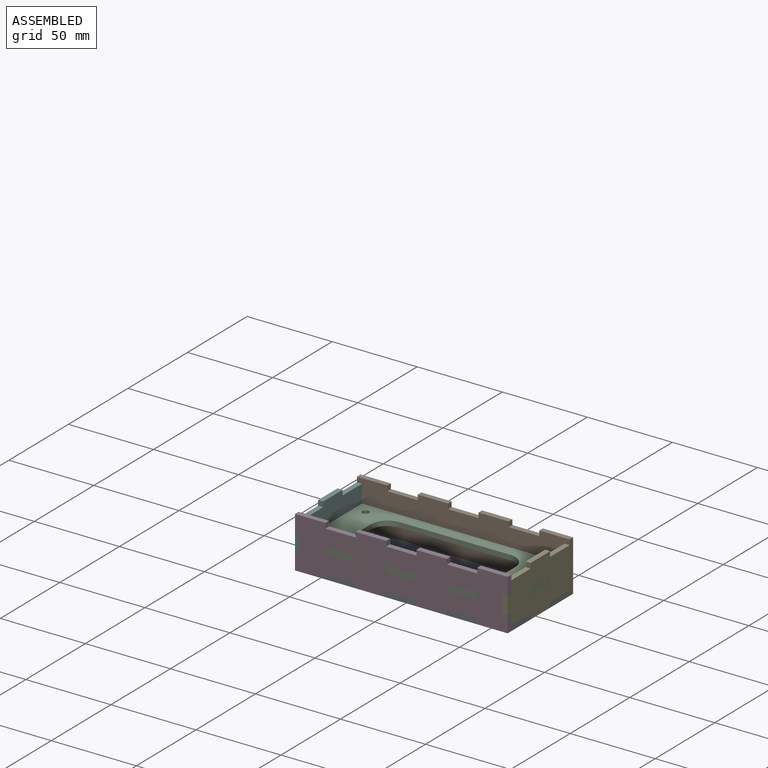
[diagram: assembled view]
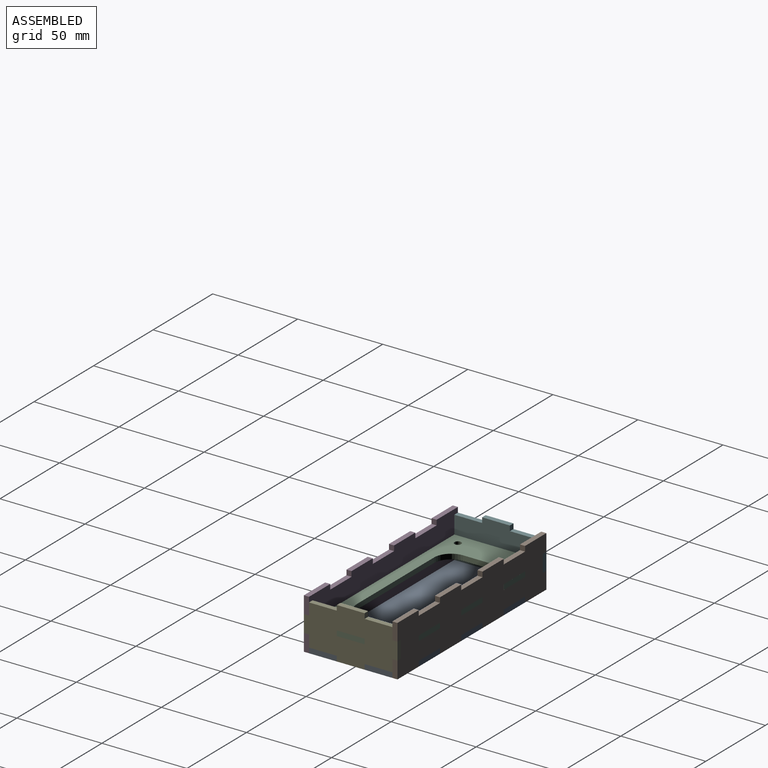
[diagram: assembled view, second angle]
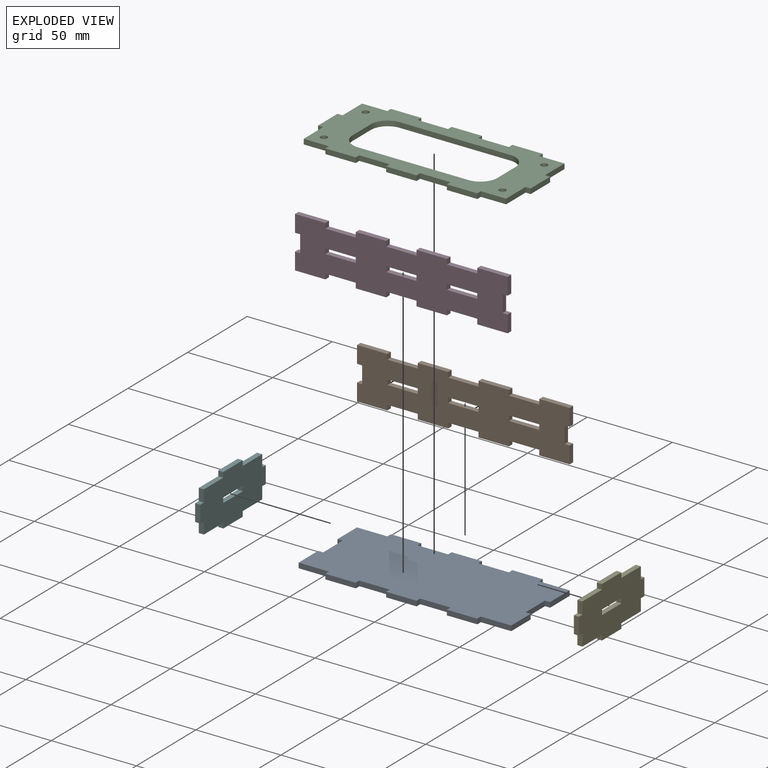
[diagram: exploded view]
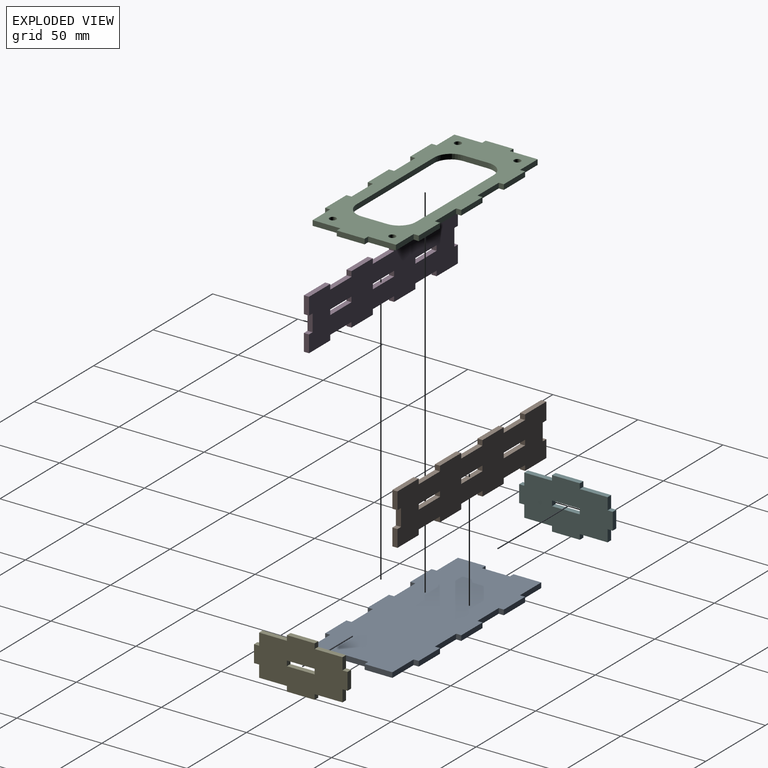
[diagram: exploded view, second angle]
ASSEMBLY  parts=6 mates=5
PART A: 38 faces, bbox 125x3x55 mm
  f0: plane 16.33x3mm, normal (1,0,0), area 49mm2, adj f10,f11,f29,f30
  f1: plane 16.33x3mm, normal (1,0,0), area 49mm2, adj f10,f11,f26,f27
  f2: plane 17.86x3mm, normal (0,0,-1), area 53.6mm2, adj f10,f11,f13,f35
  f3: plane 17.86x3mm, normal (0,0,-1), area 53.6mm2, adj f10,f11,f34,f37
  f4: plane 17.86x3mm, normal (0,0,-1), area 53.6mm2, adj f10,f11,f31,f32
  f5: plane 16.33x3mm, normal (-1,0,0), area 49mm2, adj f10,f11,f16,f17
  f6: plane 16.33x3mm, normal (-1,0,0), area 49mm2, adj f10,f11,f12,f14
  f7: plane 17.86x3mm, normal (0,0,1), area 53.6mm2, adj f10,f11,f24,f25
  f8: plane 17.86x3mm, normal (0,0,1), area 53.6mm2, adj f10,f11,f21,f22
  f9: plane 17.86x3mm, normal (0,0,1), area 53.6mm2, adj f10,f11,f18,f19
  f10: plane 125x55mm, normal (0,1,0), area 6348.4mm2, adj f0,f1,f2,f3,f4,f5,f6,f7
  f11: plane 125x55mm, normal (0,-1,0), area 6348.4mm2, adj f0,f1,f2,f3,f4,f5,f6,f7
  f12: plane 17.86x3mm, normal (0,0,-1), area 53.6mm2, adj f6,f10,f11,f13
  f13: plane 3x3mm, normal (-1,0,0), area 9mm2, adj f2,f10,f11,f12
  f14: plane 3x3mm, normal (0,0,1), area 9mm2, adj f6,f10,f11,f15
  f15: plane 16.33x3mm, normal (-1,0,0), area 49mm2, adj f10,f11,f14,f16
  f16: plane 3x3mm, normal (0,0,-1), area 9mm2, adj f5,f10,f11,f15
  f17: plane 17.86x3mm, normal (0,0,1), area 53.6mm2, adj f5,f10,f11,f18
  f18: plane 3x3mm, normal (-1,0,0), area 9mm2, adj f9,f10,f11,f17
  f19: plane 3x3mm, normal (1,0,0), area 9mm2, adj f9,f10,f11,f20
  f20: plane 17.86x3mm, normal (0,0,1), area 53.6mm2, adj f10,f11,f19,f21
  f21: plane 3x3mm, normal (-1,0,0), area 9mm2, adj f8,f10,f11,f20
  f22: plane 3x3mm, normal (1,0,0), area 9mm2, adj f8,f10,f11,f23
  f23: plane 17.86x3mm, normal (0,0,1), area 53.6mm2, adj f10,f11,f22,f24
  f24: plane 3x3mm, normal (-1,0,0), area 9mm2, adj f7,f10,f11,f23
  f25: plane 3x3mm, normal (1,0,0), area 9mm2, adj f7,f10,f11,f26
  f26: plane 17.86x3mm, normal (0,0,1), area 53.6mm2, adj f1,f10,f11,f25
  f27: plane 3x3mm, normal (0,0,-1), area 9mm2, adj f1,f10,f11,f28
  f28: plane 16.33x3mm, normal (1,0,0), area 49mm2, adj f10,f11,f27,f29
  f29: plane 3x3mm, normal (0,0,1), area 9mm2, adj f0,f10,f11,f28
  f30: plane 17.86x3mm, normal (0,0,-1), area 53.6mm2, adj f0,f10,f11,f31
  f31: plane 3x3mm, normal (1,0,0), area 9mm2, adj f4,f10,f11,f30
  f32: plane 3x3mm, normal (-1,0,0), area 9mm2, adj f4,f10,f11,f33
  f33: plane 17.86x3mm, normal (0,0,-1), area 53.6mm2, adj f10,f11,f32,f34
  f34: plane 3x3mm, normal (1,0,0), area 9mm2, adj f3,f10,f11,f33
  f35: plane 3x3mm, normal (1,0,0), area 9mm2, adj f2,f10,f11,f36
  f36: plane 17.86x3mm, normal (0,0,-1), area 53.6mm2, adj f10,f11,f35,f37
  f37: plane 3x3mm, normal (-1,0,0), area 9mm2, adj f3,f10,f11,f36
PART B: 50 faces, bbox 125x3x30 mm
  f0: plane 10x3mm, normal (1,0,0), area 30mm2, adj f3,f4,f12,f44
  f1: plane 17.86x3mm, normal (0,0,1), area 53.6mm2, adj f3,f4,f11,f40
  f2: plane 17.86x3mm, normal (0,0,1), area 53.6mm2, adj f3,f4,f34,f41
  f3: plane 125x30mm, normal (0,1,0), area 3207.9mm2, adj f0,f1,f2,f5,f6,f7,f8,f9
  f4: plane 125x30mm, normal (0,-1,0), area 3207.9mm2, adj f0,f1,f2,f5,f6,f7,f8,f9
  f5: plane 17.86x3mm, normal (0,0,-1), area 53.6mm2, adj f3,f4,f33,f38
  f6: plane 17.86x3mm, normal (0,0,1), area 53.6mm2, adj f3,f4,f20,f35
  f7: plane 17.86x3mm, normal (0,0,-1), area 53.6mm2, adj f3,f4,f16,f32
  f8: plane 17.86x3mm, normal (0,0,1), area 53.6mm2, adj f3,f4,f9,f21
  f9: plane 10x3mm, normal (-1,0,0), area 30mm2, adj f3,f4,f8,f18
  f10: plane 17.86x3mm, normal (0,0,-1), area 53.6mm2, adj f3,f4,f13,f15
  f11: plane 10x3mm, normal (1,0,0), area 30mm2, adj f1,f3,f4,f45
  f12: plane 17.86x3mm, normal (0,0,-1), area 53.6mm2, adj f0,f3,f4,f39
  f13: plane 10x3mm, normal (-1,0,0), area 30mm2, adj f3,f4,f10,f19
  f14: plane 17.86x3mm, normal (0,0,-1), area 53.6mm2, adj f3,f4,f15,f16
  f15: plane 3x3mm, normal (1,0,0), area 9mm2, adj f3,f4,f10,f14
  f16: plane 3x3mm, normal (-1,0,0), area 9mm2, adj f3,f4,f7,f14
  f17: plane 10x3mm, normal (-1,0,0), area 30mm2, adj f3,f4,f18,f19
  f18: plane 3x3mm, normal (0,0,-1), area 9mm2, adj f3,f4,f9,f17
  f19: plane 3x3mm, normal (0,0,1), area 9mm2, adj f3,f4,f13,f17
  f20: plane 3x3mm, normal (-1,0,0), area 9mm2, adj f3,f4,f6,f22
  f21: plane 3x3mm, normal (1,0,0), area 9mm2, adj f3,f4,f8,f22
  f22: plane 17.86x3mm, normal (0,0,1), area 53.6mm2, adj f3,f4,f20,f21
  f23: plane 17.86x3mm, normal (0,0,-1), area 53.6mm2, adj f3,f4,f24,f26
  f24: plane 3x3mm, normal (1,0,0), area 9mm2, adj f3,f4,f23,f25
  f25: plane 17.86x3mm, normal (0,0,1), area 53.6mm2, adj f3,f4,f24,f26
  f26: plane 3x3mm, normal (-1,0,0), area 9mm2, adj f3,f4,f23,f25
  f27: plane 17.86x3mm, normal (0,0,-1), area 53.6mm2, adj f3,f4,f28,f30
  f28: plane 3x3mm, normal (1,0,0), area 9mm2, adj f3,f4,f27,f29
  f29: plane 17.86x3mm, normal (0,0,1), area 53.6mm2, adj f3,f4,f28,f30
  f30: plane 3x3mm, normal (-1,0,0), area 9mm2, adj f3,f4,f27,f29
  f31: plane 17.86x3mm, normal (0,0,-1), area 53.6mm2, adj f3,f4,f32,f33
  f32: plane 3x3mm, normal (1,0,0), area 9mm2, adj f3,f4,f7,f31
  f33: plane 3x3mm, normal (-1,0,0), area 9mm2, adj f3,f4,f5,f31
  f34: plane 3x3mm, normal (-1,0,0), area 9mm2, adj f2,f3,f4,f36
  f35: plane 3x3mm, normal (1,0,0), area 9mm2, adj f3,f4,f6,f36
  f36: plane 17.86x3mm, normal (0,0,1), area 53.6mm2, adj f3,f4,f34,f35
  f37: plane 17.86x3mm, normal (0,0,-1), area 53.6mm2, adj f3,f4,f38,f39
  f38: plane 3x3mm, normal (1,0,0), area 9mm2, adj f3,f4,f5,f37
  f39: plane 3x3mm, normal (-1,0,0), area 9mm2, adj f3,f4,f12,f37
  f40: plane 3x3mm, normal (-1,0,0), area 9mm2, adj f1,f3,f4,f42
  f41: plane 3x3mm, normal (1,0,0), area 9mm2, adj f2,f3,f4,f42
  f42: plane 17.86x3mm, normal (0,0,1), area 53.6mm2, adj f3,f4,f40,f41
  f43: plane 10x3mm, normal (1,0,0), area 30mm2, adj f3,f4,f44,f45
  f44: plane 3x3mm, normal (0,0,1), area 9mm2, adj f0,f3,f4,f43
  f45: plane 3x3mm, normal (0,0,-1), area 9mm2, adj f3,f4,f11,f43
  f46: plane 17.86x3mm, normal (0,0,-1), area 53.6mm2, adj f3,f4,f47,f49
  f47: plane 3x3mm, normal (1,0,0), area 9mm2, adj f3,f4,f46,f48
  f48: plane 17.86x3mm, normal (0,0,1), area 53.6mm2, adj f3,f4,f47,f49
  f49: plane 3x3mm, normal (-1,0,0), area 9mm2, adj f3,f4,f46,f48
PART C: 50 faces, bbox 125x3x55 mm
  f0: plane 125x55mm, normal (0,1,0), area 3311.1mm2, adj f2,f3,f4,f5,f6,f7,f8,f9
  f1: plane 125x55mm, normal (0,-1,0), area 3311.1mm2, adj f2,f3,f4,f5,f6,f7,f8,f9
  f2: plane 16.33x3mm, normal (1,0,0), area 49mm2, adj f0,f1,f10,f34
  f3: plane 17.86x3mm, normal (0,0,-1), area 53.6mm2, adj f0,f1,f19,f20
  f4: plane 17.86x3mm, normal (0,0,-1), area 53.6mm2, adj f0,f1,f16,f17
  f5: plane 17.86x3mm, normal (0,0,-1), area 53.6mm2, adj f0,f1,f12,f14
  f6: plane 16.33x3mm, normal (-1,0,0), area 49mm2, adj f0,f1,f23,f24
  f7: plane 17.86x3mm, normal (0,0,1), area 53.6mm2, adj f0,f1,f33,f37
  f8: plane 17.86x3mm, normal (0,0,1), area 53.6mm2, adj f0,f1,f30,f31
  f9: plane 17.86x3mm, normal (0,0,1), area 53.6mm2, adj f0,f1,f27,f28
  f10: plane 3x3mm, normal (0,0,-1), area 9mm2, adj f0,f1,f2,f13
  f11: plane 14.85x3mm, normal (0,0,-1), area 44.5mm2, adj f0,f1,f12,f13
  f12: plane 3x3mm, normal (1,0,0), area 9mm2, adj f0,f1,f5,f11
  f13: plane 16.33x3mm, normal (1,0,0), area 49mm2, adj f0,f1,f10,f11
  f14: plane 3x3mm, normal (-1,0,0), area 9mm2, adj f0,f1,f5,f15
  f15: plane 17.86x3mm, normal (0,0,-1), area 53.6mm2, adj f0,f1,f14,f16
  f16: plane 3x3mm, normal (1,0,0), area 9mm2, adj f0,f1,f4,f15
  f17: plane 3x3mm, normal (-1,0,0), area 9mm2, adj f0,f1,f4,f18
  f18: plane 17.86x3mm, normal (0,0,-1), area 53.6mm2, adj f0,f1,f17,f19
  f19: plane 3x3mm, normal (1,0,0), area 9mm2, adj f0,f1,f3,f18
  f20: plane 3x3mm, normal (-1,0,0), area 9mm2, adj f0,f1,f3,f21
  f21: plane 14.85x3mm, normal (0,0,-1), area 44.5mm2, adj f0,f1,f20,f22
  f22: plane 16.33x3mm, normal (-1,0,0), area 49mm2, adj f0,f1,f21,f23
  f23: plane 3x3mm, normal (0,0,-1), area 9mm2, adj f0,f1,f6,f22
  f24: plane 3x3mm, normal (0,0,1), area 9mm2, adj f0,f1,f6,f25
  f25: plane 16.33x3mm, normal (-1,0,0), area 49mm2, adj f0,f1,f24,f26
  f26: plane 14.85x3mm, normal (0,0,1), area 44.5mm2, adj f0,f1,f25,f27
  f27: plane 3x3mm, normal (-1,0,0), area 9mm2, adj f0,f1,f9,f26
  f28: plane 3x3mm, normal (1,0,0), area 9mm2, adj f0,f1,f9,f29
  f29: plane 17.86x3mm, normal (0,0,1), area 53.6mm2, adj f0,f1,f28,f30
  f30: plane 3x3mm, normal (-1,0,0), area 9mm2, adj f0,f1,f8,f29
  f31: plane 3x3mm, normal (1,0,0), area 9mm2, adj f0,f1,f8,f32
  f32: plane 17.86x3mm, normal (0,0,1), area 53.6mm2, adj f0,f1,f31,f33
  f33: plane 3x3mm, normal (-1,0,0), area 9mm2, adj f0,f1,f7,f32
  f34: plane 3x3mm, normal (0,0,1), area 9mm2, adj f0,f1,f2,f35
  f35: plane 16.33x3mm, normal (1,0,0), area 49mm2, adj f0,f1,f34,f36
  f36: plane 14.85x3mm, normal (0,0,1), area 44.5mm2, adj f0,f1,f35,f37
  f37: plane 3x3mm, normal (1,0,0), area 9mm2, adj f0,f1,f7,f36
  f38: cylinder r=10mm len=10mm, axis (0,1,0), area 47.1mm2, adj f0,f1,f39,f45
  f39: plane 65x3mm, normal (0,0,1), area 195mm2, adj f0,f1,f38,f40
  f40: cylinder r=10mm len=10mm, axis (0,1,0), area 47.1mm2, adj f0,f1,f39,f41
  f41: plane 15x3mm, normal (-1,0,0), area 45mm2, adj f0,f1,f40,f42
  f42: cylinder r=10mm len=10mm, axis (0,1,0), area 47.1mm2, adj f0,f1,f41,f43
  f43: plane 65x3mm, normal (0,0,-1), area 195mm2, adj f0,f1,f42,f44
  f44: cylinder r=10mm len=10mm, axis (0,1,0), area 47.1mm2, adj f0,f1,f43,f45
  f45: plane 15x3mm, normal (1,0,0), area 45mm2, adj f0,f1,f38,f44
  f46: cylinder r=2mm len=4mm, axis (0,1,0), area 37.7mm2, adj f0,f1
  f47: cylinder r=2mm len=4mm, axis (0,1,0), area 37.7mm2, adj f0,f1
  f48: cylinder r=2mm len=4mm, axis (0,1,0), area 37.7mm2, adj f0,f1
  f49: cylinder r=2mm len=4mm, axis (0,1,0), area 37.7mm2, adj f0,f1
PART D: same geometry as B
PART E: 26 faces, bbox 30x3x55 mm
  f0: plane 55x30mm, normal (0,1,0), area 1285mm2, adj f2,f3,f4,f5,f6,f7,f8,f9
  f1: plane 55x30mm, normal (0,-1,0), area 1285mm2, adj f2,f3,f4,f5,f6,f7,f8,f9
  f2: plane 10x3mm, normal (0,0,1), area 30mm2, adj f0,f1,f8,f19
  f3: plane 16.33x3mm, normal (-1,0,0), area 49mm2, adj f0,f1,f9,f10
  f4: plane 10x3mm, normal (0,0,-1), area 30mm2, adj f0,f1,f11,f16
  f5: plane 16.33x3mm, normal (1,0,0), area 49mm2, adj f0,f1,f17,f18
  f6: plane 16.33x3mm, normal (-1,0,0), area 49mm2, adj f0,f1,f7,f9
  f7: plane 7x3mm, normal (0,0,1), area 21mm2, adj f0,f1,f6,f8
  f8: plane 3x3mm, normal (-1,0,0), area 9mm2, adj f0,f1,f2,f7
  f9: plane 3x3mm, normal (0,0,1), area 9mm2, adj f0,f1,f3,f6
  f10: plane 3x3mm, normal (0,0,-1), area 9mm2, adj f0,f1,f3,f13
  f11: plane 3x3mm, normal (-1,0,0), area 9mm2, adj f0,f1,f4,f12
  f12: plane 7x3mm, normal (0,0,-1), area 21mm2, adj f0,f1,f11,f13
  f13: plane 16.33x3mm, normal (-1,0,0), area 49mm2, adj f0,f1,f10,f12
  f14: plane 16.33x3mm, normal (1,0,0), area 49mm2, adj f0,f1,f15,f17
  f15: plane 7x3mm, normal (0,0,-1), area 21mm2, adj f0,f1,f14,f16
  f16: plane 3x3mm, normal (1,0,0), area 9mm2, adj f0,f1,f4,f15
  f17: plane 3x3mm, normal (0,0,-1), area 9mm2, adj f0,f1,f5,f14
  f18: plane 3x3mm, normal (0,0,1), area 9mm2, adj f0,f1,f5,f21
  f19: plane 3x3mm, normal (1,0,0), area 9mm2, adj f0,f1,f2,f20
  f20: plane 7x3mm, normal (0,0,1), area 21mm2, adj f0,f1,f19,f21
  f21: plane 16.33x3mm, normal (1,0,0), area 49mm2, adj f0,f1,f18,f20
  f22: plane 16.33x3mm, normal (-1,0,0), area 49mm2, adj f0,f1,f23,f25
  f23: plane 3x3mm, normal (0,0,-1), area 9mm2, adj f0,f1,f22,f24
  f24: plane 16.33x3mm, normal (1,0,0), area 49mm2, adj f0,f1,f23,f25
  f25: plane 3x3mm, normal (0,0,1), area 9mm2, adj f0,f1,f22,f24
PART F: same geometry as E
PLACE A rot(axis=(-1,0,0),90deg) t=(0,0,0)mm
PLACE B t=(0,24.5,12)mm
PLACE C rot(axis=(-1,0,0),90deg) t=(0,0,13.5)mm
PLACE D t=(0,-27.5,12)mm
PLACE E rot(axis=(-0.58,-0.58,-0.58),120deg) t=(59.5,0,12)mm
PLACE F rot(axis=(0.58,0.58,-0.58),120deg) t=(-62.5,0,12)mm
MATE fastened D.f4 <-> C.f4  axis (0,-1,0) through (0,-27.5,10.5)mm
MATE fastened F.f0 <-> A.f15  axis (1,0,0) through (-59.5,0,-3)mm
MATE fastened E.f1 <-> A.f28  axis (-1,0,0) through (59.5,0,-3)mm
MATE fastened A.f11 <-> D.f31  axis (0,0,1) through (0,-27.5,0)mm
MATE fastened B.f31 <-> A.f11  axis (0,0,-1) through (0,27.5,0)mm
